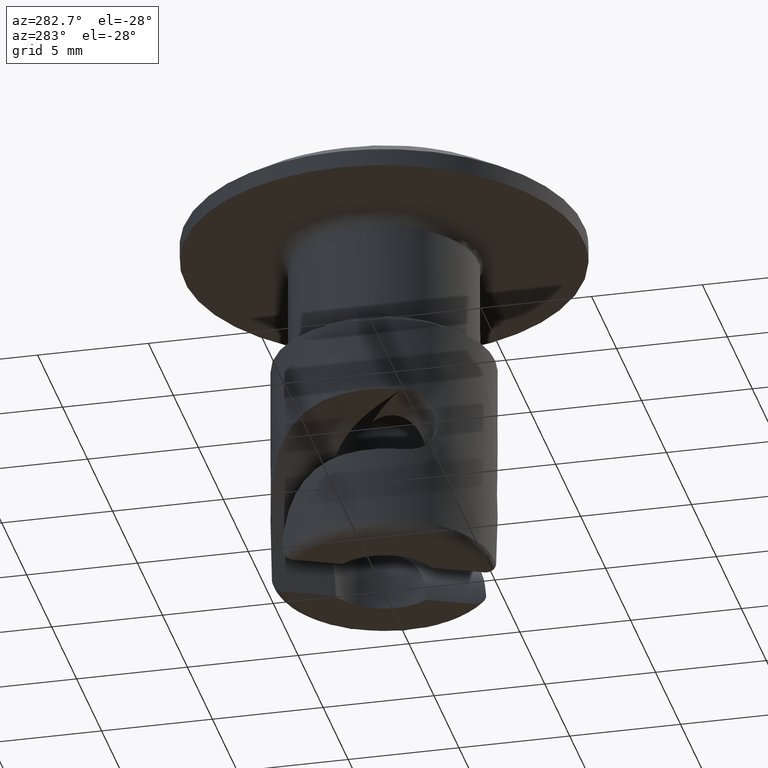
[diagram: clean part render]
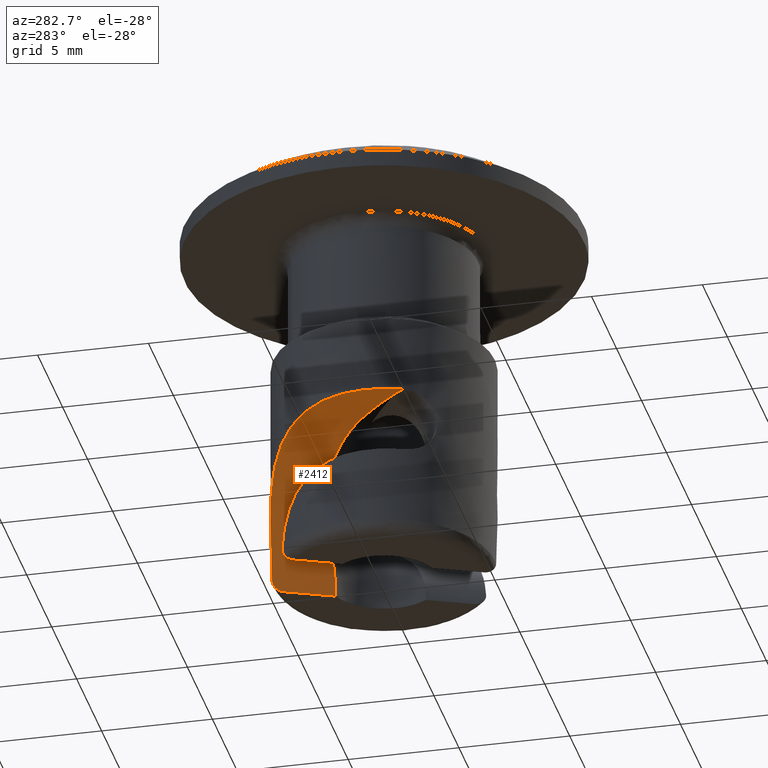
[diagram: same view with one face highlighted and labeled with its STEP entity id]
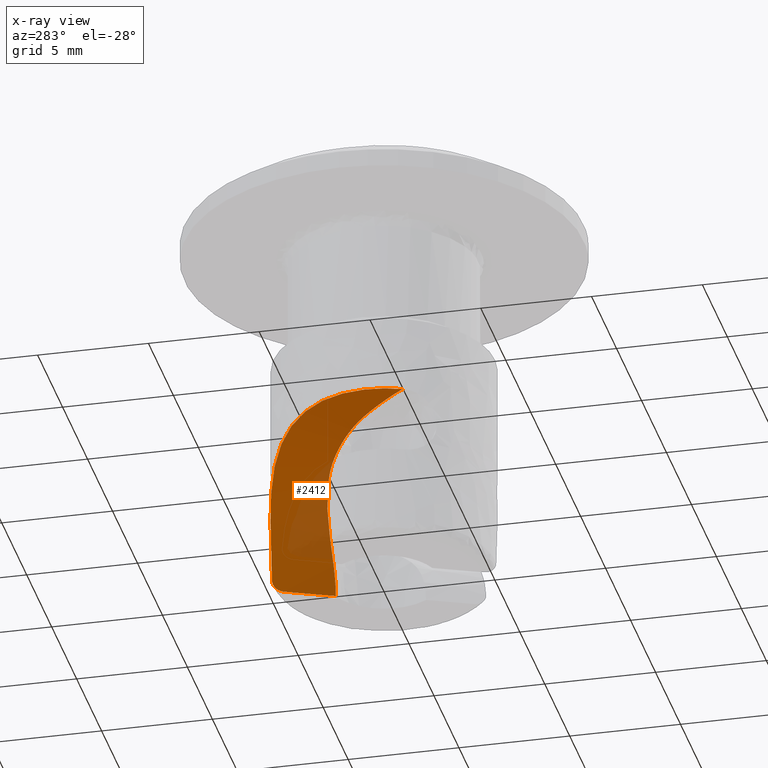
[diagram: x-ray of the same camera — body ghosted, the highlighted face saturated]
A machine part, auxiliary view. The second image highlights one B-rep face of the part: STEP entity #2412.
The next image is the same camera in x-ray: the body ghosted, the highlighted face saturated — about 22% of this face is hidden behind the body in this view.
In plain terms, the highlighted face is a freeform B-spline surface patch.
Its self-contained STEP definition (entity closure, byte-faithful):
#483=CARTESIAN_POINT('',(-0.396705262440852,2.468326342391735,-12.257818603978530));
#484=VERTEX_POINT('',#483);
#485=CARTESIAN_POINT('',(0.821620629966657,2.361130987559410,-15.999992000000001));
#486=VERTEX_POINT('',#485);
#487=CARTESIAN_POINT('',(-0.396705262440852,2.468326342391735,-12.257818603978530));
#488=CARTESIAN_POINT('',(-0.374689728749494,2.471862556013030,-12.292135446248659));
#489=CARTESIAN_POINT('',(-0.352860775287749,2.475066859505303,-12.326635483260350));
#490=CARTESIAN_POINT('',(-0.274510751956008,2.485539854632608,-12.452236586602471));
#491=CARTESIAN_POINT('',(-0.219122534916091,2.490963330067821,-12.544421271460941));
#492=CARTESIAN_POINT('',(-0.111245094644495,2.498106902245535,-12.731391844083900));
#493=CARTESIAN_POINT('',(-0.058756051427021,2.499816637982235,-12.826203044052900));
#494=CARTESIAN_POINT('',(0.092550910475531,2.500320389656392,-13.111869867105010));
#495=CARTESIAN_POINT('',(0.185777978729192,2.494552241250280,-13.304874506492579));
#496=CARTESIAN_POINT('',(0.355782634048445,2.476029930821305,-13.696684103203159));
#497=CARTESIAN_POINT('',(0.432564614363156,2.463259284227021,-13.895486642050770));
#498=CARTESIAN_POINT('',(0.567810437418991,2.435641776416854,-14.299821152877341));
#499=CARTESIAN_POINT('',(0.626276591557561,2.420796277437338,-14.505352327856039));
#500=CARTESIAN_POINT('',(0.698214385262326,2.400648686513183,-14.819624382285561));
#501=CARTESIAN_POINT('',(0.719589156798149,2.394277061144631,-14.925553476059340));
#502=CARTESIAN_POINT('',(0.756523998615184,2.382864482992261,-15.138808192215290));
#503=CARTESIAN_POINT('',(0.772021192919132,2.377846312258519,-15.245723948284761));
#504=CARTESIAN_POINT('',(0.809320382267174,2.365520120732459,-15.567381413071031));
#505=CARTESIAN_POINT('',(0.821911469347305,2.361029684390311,-15.783037621030820));
#506=CARTESIAN_POINT('',(0.821620629966657,2.361130987559410,-15.999992000000001));
#507=B_SPLINE_CURVE_WITH_KNOTS('',3,(#487,#488,#489,#490,#491,#492,#493,#494,#495,#496,#497,#498,#499,#500,#501,#502,#503,#504,#505,#506),.UNSPECIFIED.,.F.,.U.,(4,2,2,2,2,2,2,2,2,4),(0.226156631933789,0.250000000000003,0.312500000000003,0.375000000000003,0.500000000000003,0.625000000000002,0.750000000000002,0.812500000000001,0.875000000000000,1.0),.UNSPECIFIED.);
#508=EDGE_CURVE('',#484,#486,#507,.T.);
#745=CARTESIAN_POINT('',(-1.068076637585400,2.260356674563610,-11.330051027094740));
#746=VERTEX_POINT('',#745);
#747=CARTESIAN_POINT('',(-1.068076637585400,2.260356674563610,-11.330051027094740));
#748=CARTESIAN_POINT('',(-0.937149889786231,2.322222535057804,-11.492076449011419));
#749=CARTESIAN_POINT('',(-0.809622041911568,2.368734506688453,-11.659008977666780));
#750=CARTESIAN_POINT('',(-0.586867594567016,2.432347862123341,-11.969934268594599));
#751=CARTESIAN_POINT('',(-0.490107279898844,2.453324163054760,-12.112227755701999));
#752=CARTESIAN_POINT('',(-0.396705262440852,2.468326342391735,-12.257818603978530));
#753=B_SPLINE_CURVE_WITH_KNOTS('',3,(#747,#748,#749,#750,#751,#752),.UNSPECIFIED.,.F.,.U.,(4,2,4),(0.0,0.125000000000001,0.226156631933789),.UNSPECIFIED.);
#754=EDGE_CURVE('',#746,#484,#753,.T.);
#1048=CARTESIAN_POINT('',(-0.313195905412206,4.990181191583430,-15.499991999999949));
#1049=VERTEX_POINT('',#1048);
#1063=CARTESIAN_POINT('',(-4.602524578819660,-1.953654908462775,-9.0));
#1064=VERTEX_POINT('',#1063);
#1065=CARTESIAN_POINT('',(-0.313195905412206,4.990181191583430,-15.499991999999949));
#1066=CARTESIAN_POINT('',(-0.333546765425540,4.988903922125050,-15.227396232284381));
#1067=CARTESIAN_POINT('',(-0.370452584818864,4.986532960222628,-14.959241468027731));
#1068=CARTESIAN_POINT('',(-0.474883570205762,4.977673319507244,-14.431217910276240));
#1069=CARTESIAN_POINT('',(-0.542411066037273,4.971178988433308,-14.171349930966301));
#1070=CARTESIAN_POINT('',(-0.706408354634551,4.950537095720324,-13.659575522817120));
#1071=CARTESIAN_POINT('',(-0.802876324191000,4.936397573944334,-13.407668332396099));
#1072=CARTESIAN_POINT('',(-0.940999279459375,4.910734142524548,-13.097724074708090));
#1073=CARTESIAN_POINT('',(-0.969553742324204,4.905186823861799,-13.035879231302500));
#1074=CARTESIAN_POINT('',(-1.028090254946060,4.893252769265778,-12.913356119784350));
#1075=CARTESIAN_POINT('',(-1.118053938493020,4.874091495996607,-12.731257073642100));
#1076=CARTESIAN_POINT('',(-1.214254316441949,4.850809270207133,-12.554133564454570));
#1077=CARTESIAN_POINT('',(-1.414411305832252,4.797759596065170,-12.206374693822941));
#1078=CARTESIAN_POINT('',(-1.558172904669976,4.753794878156493,-11.983163799037071));
#1079=CARTESIAN_POINT('',(-1.863910727941996,4.642446051673332,-11.553786999905871));
#1080=CARTESIAN_POINT('',(-2.025898679385812,4.575105322148555,-11.347619161810840));
#1081=CARTESIAN_POINT('',(-2.281066071465211,4.450359661823143,-11.051551674399340));
#1082=CARTESIAN_POINT('',(-2.367379583129356,4.405162778008854,-10.955979557419210));
#1083=CARTESIAN_POINT('',(-2.541149898323556,4.307261587786675,-10.771862428583271));
#1084=CARTESIAN_POINT('',(-2.628735599058806,4.254496003795590,-10.683168502018860));
#1085=CARTESIAN_POINT('',(-2.892725821805894,4.083636333483211,-10.427054117878770));
#1086=CARTESIAN_POINT('',(-3.070398690331179,3.953062455629184,-10.269580052182929));
#1087=CARTESIAN_POINT('',(-3.291383398934542,3.764329090581664,-10.089240772930010));
#1088=CARTESIAN_POINT('',(-3.335526468967419,3.725286228791971,-10.054001642793480));
#1089=CARTESIAN_POINT('',(-3.422666554459499,3.645387217922633,-9.985892239748209));
#1090=CARTESIAN_POINT('',(-3.552011977668141,3.522522078198702,-9.886988242181328));
#1091=CARTESIAN_POINT('',(-3.676899926640330,3.390495834068176,-9.797526967280653));
#1092=CARTESIAN_POINT('',(-3.919717473170435,3.113845727708364,-9.630377207413599));
#1093=CARTESIAN_POINT('',(-4.072371127740682,2.912667398485354,-9.534628307955863));
#1094=CARTESIAN_POINT('',(-4.247738525421435,2.638362615935587,-9.432128063504120));
#1095=CARTESIAN_POINT('',(-4.282126033587908,2.582194651128475,-9.412438321733699));
#1096=CARTESIAN_POINT('',(-4.348616761330287,2.468575469157286,-9.375063344855958));
#1097=CARTESIAN_POINT('',(-4.380753847554352,2.411086895704118,-9.357355702648938));
#1098=CARTESIAN_POINT('',(-4.473804560942060,2.236615728391344,-9.306957805303108));
#1099=CARTESIAN_POINT('',(-4.531361084768407,2.117630048049653,-9.276988375661443));
#1100=CARTESIAN_POINT('',(-4.637253118513413,1.874426263098638,-9.223280495578822));
#1101=CARTESIAN_POINT('',(-4.685589482853723,1.750208259561897,-9.199543236958979));
#1102=CARTESIAN_POINT('',(-4.772655934160073,1.496573782943814,-9.157395666182412));
#1103=CARTESIAN_POINT('',(-4.811415673390121,1.367045619879293,-9.138972576584321));
#1104=CARTESIAN_POINT('',(-4.912306595230541,0.971278513278029,-9.090556081878107));
#1105=CARTESIAN_POINT('',(-4.957498069659618,0.704509144948984,-9.068086883068808));
#1106=CARTESIAN_POINT('',(-4.992796598157820,0.300436667074121,-9.043235585684668));
#1107=CARTESIAN_POINT('',(-4.999123886082069,0.165088601563687,-9.036452009681046));
#1108=CARTESIAN_POINT('',(-5.000311045573648,-0.038896223528836,-9.027979404065169));
#1109=CARTESIAN_POINT('',(-4.999321224268683,-0.107051855906746,-9.025440086090434));
#1110=CARTESIAN_POINT('',(-4.994526116694832,-0.243683550798219,-9.020852306145962));
#1111=CARTESIAN_POINT('',(-4.990711513832193,-0.312172775928867,-9.018804757432031));
#1112=CARTESIAN_POINT('',(-4.964776931553782,-0.652259243832838,-9.009688334725635));
#1113=CARTESIAN_POINT('',(-4.922157670676699,-0.919354550364730,-9.005776196690924));
#1114=CARTESIAN_POINT('',(-4.794587989318403,-1.443874972759585,-9.000926860059545));
#1115=CARTESIAN_POINT('',(-4.709642284534185,-1.701301296142525,-8.999999999999982));
#1116=CARTESIAN_POINT('',(-4.602524578819680,-1.953654908462780,-9.0));
#1117=B_SPLINE_CURVE_WITH_KNOTS('',3,(#1065,#1066,#1067,#1068,#1069,#1070,#1071,#1072,#1073,#1074,#1075,#1076,#1077,#1078,#1079,#1080,#1081,#1082,#1083,#1084,#1085,#1086,#1087,#1088,#1089,#1090,#1091,#1092,#1093,#1094,#1095,#1096,#1097,#1098,#1099,#1100,#1101,#1102,#1103,#1104,#1105,#1106,#1107,#1108,#1109,#1110,#1111,#1112,#1113,#1114,#1115,#1116),.UNSPECIFIED.,.F.,.U.,(4,2,2,2,2,1,2,2,2,2,2,2,2,1,2,2,2,2,2,2,2,2,2,2,2,2,4),(0.0,0.062500000000000,0.125000000000000,0.187500000000000,0.203125000000000,0.218750000000000,0.250000000000000,0.312500000000000,0.374999999999999,0.406249999999999,0.437499999999999,0.499999999999999,0.515625000000000,0.531250000000000,0.562500000000000,0.625000000000000,0.640625000000000,0.656250000000000,0.687500000000000,0.718750000000000,0.750000000000000,0.812500000000000,0.843750000000000,0.859375000000000,0.875000000000000,0.937500000000000,1.0),.UNSPECIFIED.);
#1118=EDGE_CURVE('',#1049,#1064,#1117,.T.);
#1992=CARTESIAN_POINT('',(-1.068076637585400,2.260356674563610,-11.330051027094740));
#1993=CARTESIAN_POINT('',(-1.115196898142947,2.243959020775088,-11.275354650785619));
#1994=CARTESIAN_POINT('',(-1.211607937622612,2.210408381876384,-11.163442398320599));
#1995=CARTESIAN_POINT('',(-1.358044262727267,2.136874158689592,-10.997915340008211));
#1996=CARTESIAN_POINT('',(-1.510223223840788,2.045196417081144,-10.830777931977201));
#1997=CARTESIAN_POINT('',(-1.668513222439201,1.933383166583977,-10.663367103391311));
#1998=CARTESIAN_POINT('',(-1.833388564127648,1.801766182513143,-10.496605001718491));
#1999=CARTESIAN_POINT('',(-2.005294546664322,1.650066696161239,-10.331615007694820));
#2000=CARTESIAN_POINT('',(-2.280103868909321,1.386131698416439,-10.083115061325250));
#2001=CARTESIAN_POINT('',(-2.648559343785973,0.990191801006411,-9.790238160188903));
#2002=CARTESIAN_POINT('',(-3.046132583842559,0.488190559841194,-9.530102903101774));
#2003=CARTESIAN_POINT('',(-3.431541624882672,-0.106862995103766,-9.312288419133711));
#2004=CARTESIAN_POINT('',(-3.756832317597932,-0.609583754059728,-9.176222751286513));
#2005=CARTESIAN_POINT('',(-4.056671894842438,-1.064740368026968,-9.089291363234109));
#2006=CARTESIAN_POINT('',(-4.216908536968650,-1.297732364027078,-9.054100119792551));
#2007=CARTESIAN_POINT('',(-4.335363766613476,-1.466941027502527,-9.033473465121171));
#2008=CARTESIAN_POINT('',(-4.415481485339884,-1.580117718021864,-9.021640466616788));
#2009=CARTESIAN_POINT('',(-4.487639912337143,-1.685338930494895,-9.012666428999447));
#2010=CARTESIAN_POINT('',(-4.545029054987573,-1.777706913784761,-9.006554950712999));
#2011=CARTESIAN_POINT('',(-4.582017502271593,-1.851747667399726,-9.002888301023830));
#2012=CARTESIAN_POINT('',(-4.606164697275386,-1.908464191930994,-9.000664087912519));
#2013=CARTESIAN_POINT('',(-4.603546974464685,-1.940962246853121,-9.000186521564594));
#2014=CARTESIAN_POINT('',(-4.602524578819660,-1.953654908462775,-9.0));
#2015=B_SPLINE_CURVE_WITH_KNOTS('',3,(#1992,#1993,#1994,#1995,#1996,#1997,#1998,#1999,#2000,#2001,#2002,#2003,#2004,#2005,#2006,#2007,#2008,#2009,#2010,#2011,#2012,#2013,#2014),.UNSPECIFIED.,.F.,.U.,(4,1,1,1,1,1,1,1,1,1,1,1,1,1,1,1,1,1,1,1,4),(0.0,0.035661690052503,0.072966078007239,0.112076344962757,0.153134142481910,0.196261933459130,0.241565394132328,0.289135700252392,0.415323915246537,0.536920191131379,0.620898976919432,0.772239528694498,0.832208928256856,0.886700270748879,0.909457090795370,0.932201028324354,0.953717471467476,0.971115563577776,0.984466466115040,0.993933117238052,1.0),.UNSPECIFIED.);
#2016=EDGE_CURVE('',#746,#1064,#2015,.T.);
#2362=CARTESIAN_POINT('',(-6.848274130348758,2.660344078080870,-8.992860294288448));
#2363=CARTESIAN_POINT('',(-4.795838525439688,-2.174893341342177,-8.992860294288448));
#2364=CARTESIAN_POINT('',(-0.058428636487120,5.542461218276202,-9.052643478377981));
#2365=CARTESIAN_POINT('',(1.994006968421950,0.707223798853158,-9.052643478377981));
#2366=CARTESIAN_POINT('',(-0.468736990302537,5.368295732424448,-16.415624430937079));
#2367=CARTESIAN_POINT('',(1.583698614606532,0.533058313001404,-16.415624430937079));
#2375=(BOUNDED_SURFACE()B_SPLINE_SURFACE(1,2,((#2362,#2364,#2366),(#2363,#2365,#2367)),.UNSPECIFIED.,.F.,.F.,.U.)B_SPLINE_SURFACE_WITH_KNOTS((2,2),(3,3),(0.0,5.252809992231520),(0.0,12.029749367071400),.UNSPECIFIED.)GEOMETRIC_REPRESENTATION_ITEM()RATIONAL_B_SPLINE_SURFACE(((1.0,0.688354575693754,1.0),(1.0,0.688354575693754,1.0)))REPRESENTATION_ITEM('')SURFACE());
#2376=ORIENTED_EDGE('',*,*,#508,.F.);
#2377=ORIENTED_EDGE('',*,*,#754,.F.);
#2378=ORIENTED_EDGE('',*,*,#2016,.T.);
#2379=ORIENTED_EDGE('',*,*,#1118,.F.);
#2380=CARTESIAN_POINT('',(-0.085926736938831,4.499179546970655,-15.999992000000001));
#2381=VERTEX_POINT('',#2380);
#2382=CARTESIAN_POINT('',(-0.085926736938831,4.499179546970655,-15.999992000000001));
#2383=CARTESIAN_POINT('',(-0.099323386829687,4.530740090304493,-15.999992000014441));
#2384=CARTESIAN_POINT('',(-0.112514948671494,4.561830365591248,-15.996982507674900));
#2385=CARTESIAN_POINT('',(-0.138512566770734,4.623070058957920,-15.985107271363860));
#2386=CARTESIAN_POINT('',(-0.151372913173382,4.653347832798081,-15.976191638592320));
#2387=CARTESIAN_POINT('',(-0.176517242522227,4.712335603826626,-15.952256780752000));
#2388=CARTESIAN_POINT('',(-0.188511817925167,4.740365641031780,-15.937540437744209));
#2389=CARTESIAN_POINT('',(-0.205717921178870,4.780207127594330,-15.911385875600701));
#2390=CARTESIAN_POINT('',(-0.211321637625100,4.793117980129820,-15.901983380206699));
#2391=CARTESIAN_POINT('',(-0.222271157668035,4.818168450778483,-15.881762240879480));
#2392=CARTESIAN_POINT('',(-0.227646493351384,4.830374038537223,-15.870873922467251));
#2393=CARTESIAN_POINT('',(-0.243104211517104,4.865120905863295,-15.836599099187699));
#2394=CARTESIAN_POINT('',(-0.252551265329909,4.885876374978815,-15.811622758348429));
#2395=CARTESIAN_POINT('',(-0.269855555540414,4.922516928318114,-15.757422027989049));
#2396=CARTESIAN_POINT('',(-0.277788428082757,4.938535296295918,-15.727807117909670));
#2397=CARTESIAN_POINT('',(-0.291479740881821,4.964145045134797,-15.666365880076951));
#2398=CARTESIAN_POINT('',(-0.297290747804784,4.973871177412904,-15.634504893099979));
#2399=CARTESIAN_POINT('',(-0.306881423756249,4.987005521835658,-15.568459685655490));
#2400=CARTESIAN_POINT('',(-0.310638657178372,4.990341690701627,-15.534245837189230));
#2401=CARTESIAN_POINT('',(-0.313195905412206,4.990181191583430,-15.499991999999949));
#2402=B_SPLINE_CURVE_WITH_KNOTS('',3,(#2382,#2383,#2384,#2385,#2386,#2387,#2388,#2389,#2390,#2391,#2392,#2393,#2394,#2395,#2396,#2397,#2398,#2399,#2400,#2401),.UNSPECIFIED.,.F.,.U.,(4,2,2,2,2,2,2,2,2,4),(0.0,0.124999999999996,0.249999999999992,0.374999999999987,0.437499999999985,0.499999999999983,0.624999999999987,0.749999999999991,0.874999999999996,1.0),.UNSPECIFIED.);
#2403=EDGE_CURVE('',#2381,#1049,#2402,.T.);
#2404=ORIENTED_EDGE('',*,*,#2403,.F.);
#2405=CARTESIAN_POINT('',(-0.085926736938831,4.499179546970655,-15.999992000000001));
#2406=CARTESIAN_POINT('',(0.821620629966657,2.361130987559410,-15.999992000000001));
#2407=QUASI_UNIFORM_CURVE('',1,(#2405,#2406),.UNSPECIFIED.,.F.,.U.);
#2408=EDGE_CURVE('',#2381,#486,#2407,.T.);
#2409=ORIENTED_EDGE('',*,*,#2408,.T.);
#2410=EDGE_LOOP('',(#2376,#2377,#2378,#2379,#2404,#2409));
#2411=FACE_OUTER_BOUND('',#2410,.T.);
#2412=ADVANCED_FACE('',(#2411),#2375,.F.);